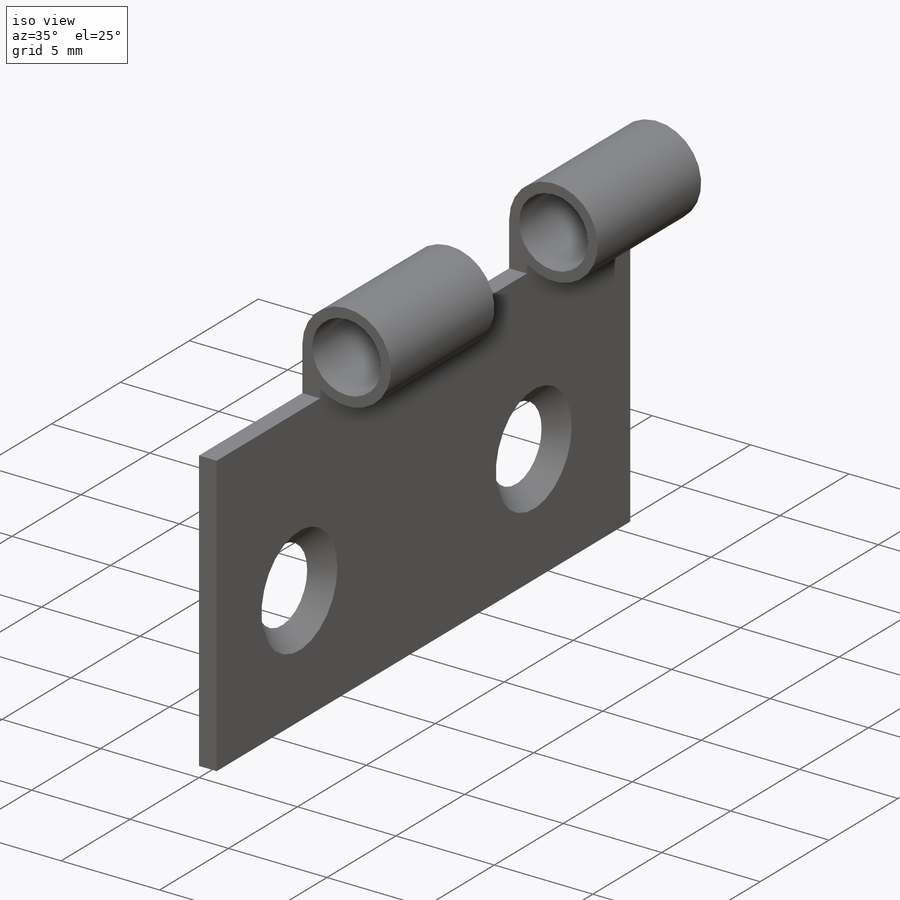
[diagram: iso view]
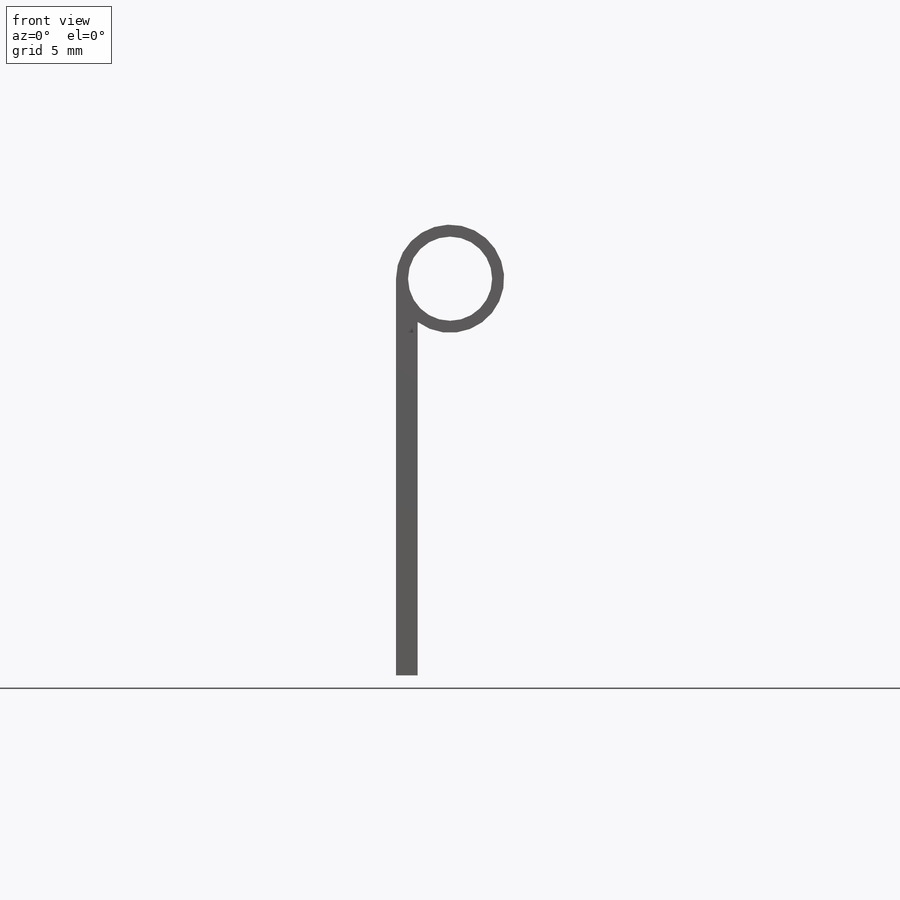
[diagram: front view]
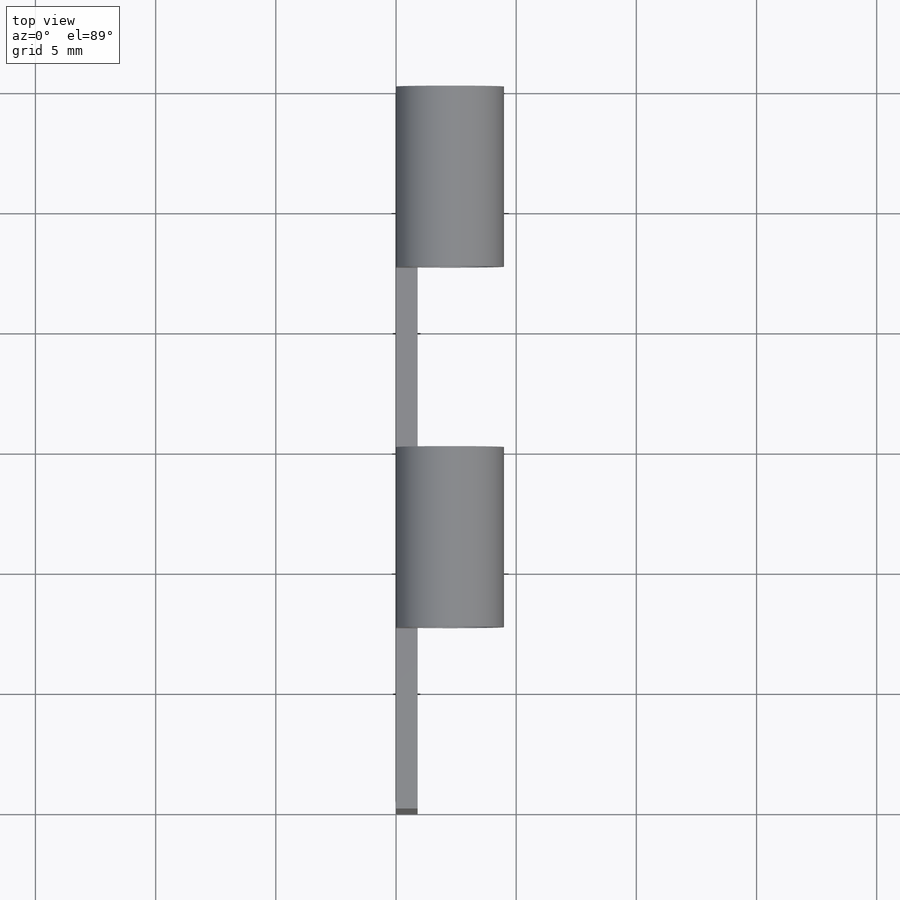
[diagram: top view]
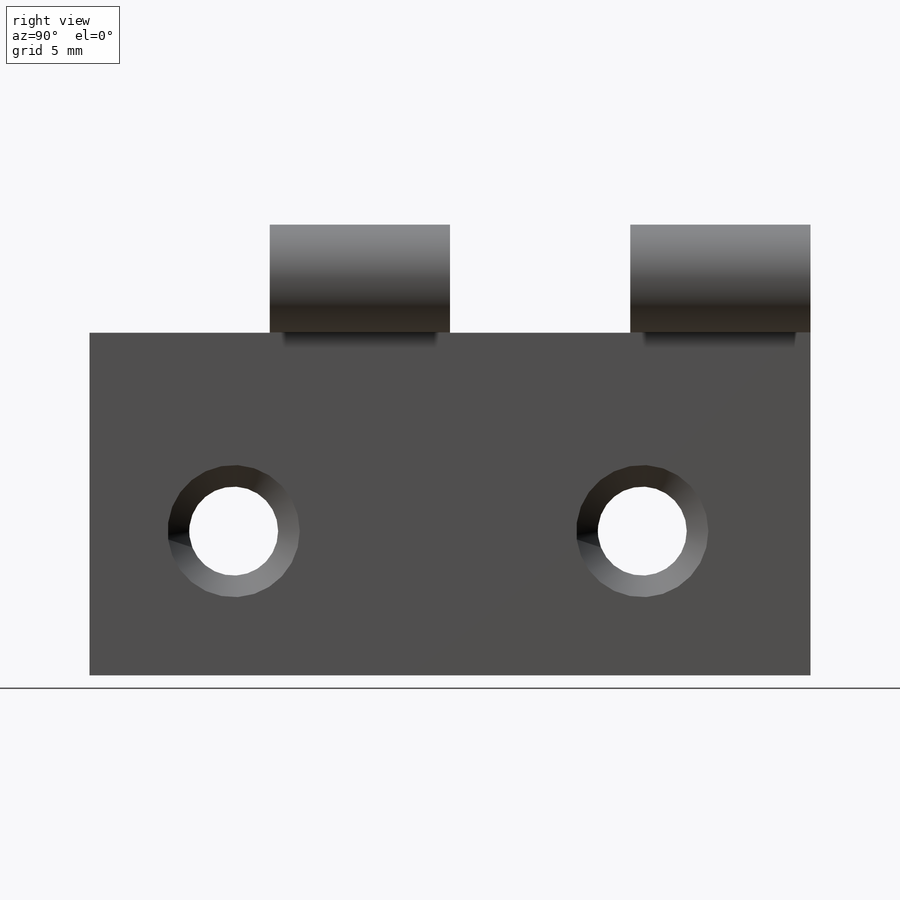
[diagram: right view]
SOLIDWORKS PART (.sldprt)
format: sldprt  version: not decoded by parser v0  size: 262,656 bytes
history: native  units: mm
features: sketch x7, plane x3, cut_extrude x2, material x1, sweep x1, hole x1 (+10 scaffold rows collapsed)
feature tree (25):
  scaffold x10  (default folders/planes/origin — collapsed)
  material  "Materiale <non specificato>"
  plane  "Piano frontale"
  plane  "Piano superiore"
  plane  "Piano destro"
  sketch  "Schizzo1"  dims[c1.D1=16.5mm c2.D1=30.0mm c2.D5=0.9mm c2.D6=1.0mm c2.D7=5.0mm]
  sketch  "Schizzo2"  dims[D1=~12.107915mm]
  sweep  "Sweep1"
  sketch  "Schizzo4"  dims[D1=3.5mm]
  cut_extrude  "Taglio-Estrusione1"  [1 undecoded]
  sketch  "Schizzo3"  dims[c1.D2=0.0mm c1.D1=4.5mm c2.D2=7.5mm c2.D3=7.5mm c3.D2=7.5mm c3.D4=4.5mm c3.D5=7.5mm c4.D4=4.5mm c4.D5=7.5mm c5.D4=4.5mm c5.D5=7.5mm c5.D1=1.0mm c6.D4=0.2mm]
  sketch  "Schizzo7"  dims[c1.D1=~3.215243mm c1.D2=~7.13784mm c2.D1=4.5mm c2.D2=~6.254539mm c3.D1=4.5mm c3.D2=~8.11938mm c4.D1=4.5mm c4.D2=~7.169992mm c5.D1=7.5mm c5.D2=7.5mm c5.D3=7.5mm]
  cut_extrude  "Taglio-Estrusione13"  Depth=10mm
  hole  "Foro svasato per Vite M2.5-1"  Diameter=2.9mm Depth=0.9mm
  sketch  "Schizzo10"  dims[D1=6.0mm D2=7.0mm D3=6.0mm]
  sketch  "Schizzo8"  dims[hole-wizard template sketch: 55 standard entries collapsed; hole parameters kept: c17.Thru Hole Depth=0.9mm c17.Near C'Sink Dia.=5.5mm c17.D4=~3.666174mm c17.Near C'Sink Angle=90.0deg]
decode coverage: 9 of 11 modeling features carry decoded parameters
note: ~ marks probable driven/reference dimensions
note: 1 parameter value undecoded
note: suppression state not decoded; provenance and decode notes live in map.json
